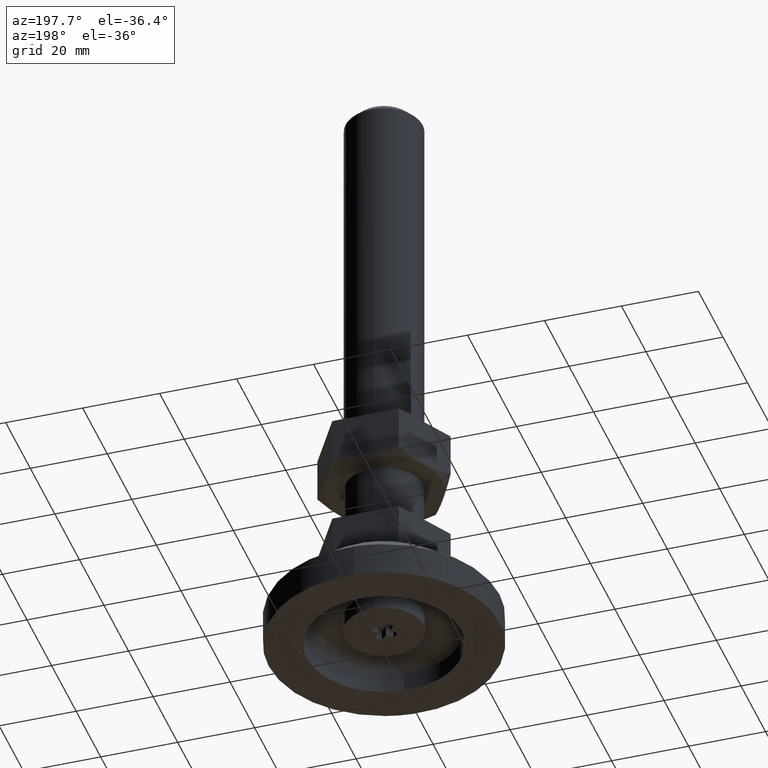
[diagram: clean part render]
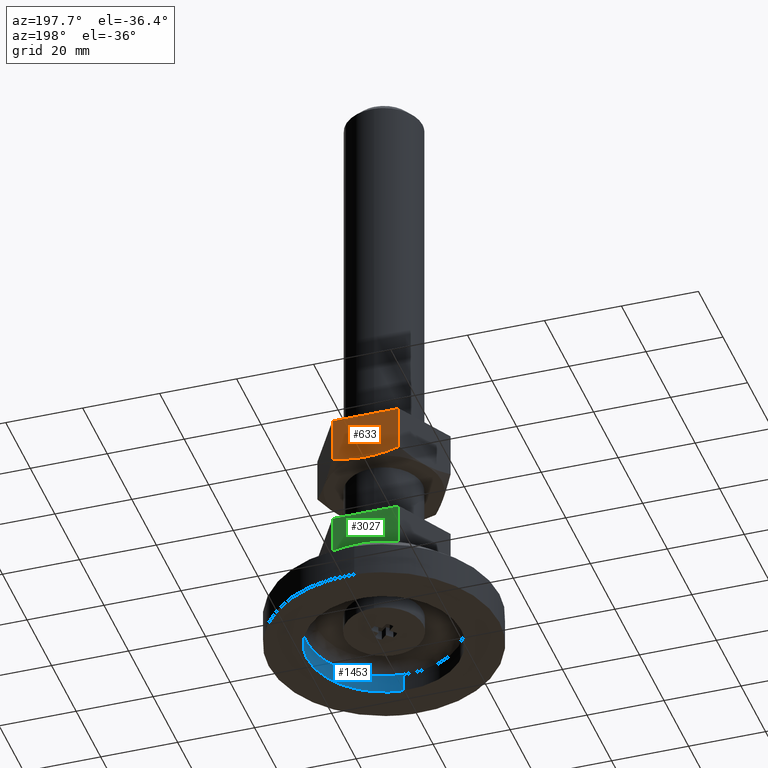
[diagram: same view with three faces highlighted in distinct colors, each labeled with its STEP entity id]
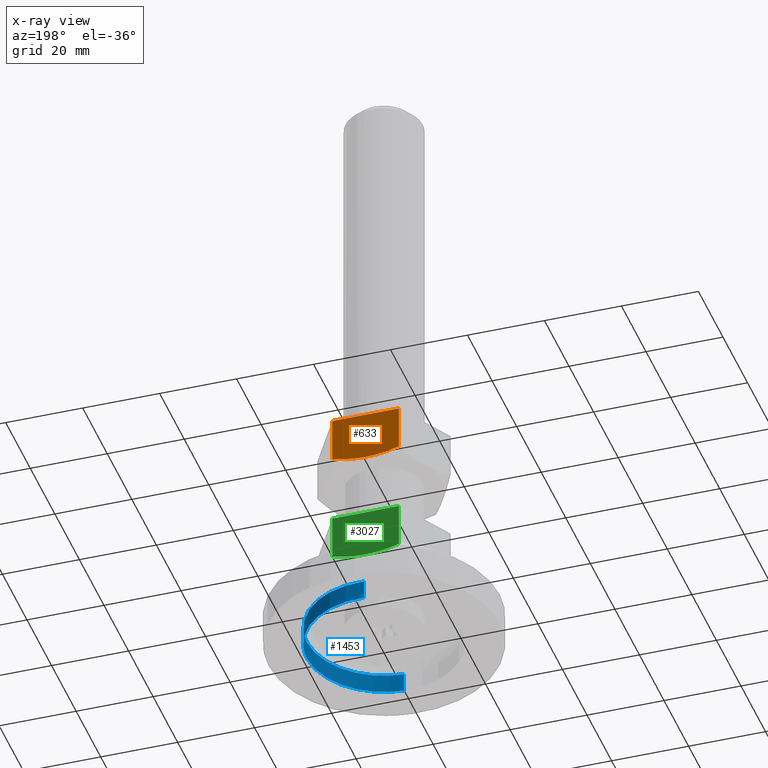
[diagram: x-ray of the same camera — body ghosted, the three highlighted faces saturated]
A machine part, auxiliary view with three faces highlighted in distinct colors.
The next image is the same camera in x-ray (body ghosted, the three faces saturated) — at least one of them is partly hidden behind the body in this view.
Their STEP definitions:

[orange] entity #633 — the highlighted face is a freeform B-spline surface patch.
#289=CARTESIAN_POINT('',(-8.639746000000001,15.0,48.345671394023597));
#290=VERTEX_POINT('',#289);
#302=CARTESIAN_POINT('',(8.639746000000001,15.0,48.345671394023597));
#303=VERTEX_POINT('',#302);
#304=CARTESIAN_POINT('',(8.639746000000001,15.0,48.345671394023597));
#305=CARTESIAN_POINT('',(7.243065403558348,15.000000000000011,47.943201150343683));
#306=CARTESIAN_POINT('',(5.828098707583275,15.0,47.608112828349647));
#307=CARTESIAN_POINT('',(4.025000240808056,15.0,47.315975503435432));
#308=CARTESIAN_POINT('',(3.481481264012238,15.0,47.237876046936201));
#309=CARTESIAN_POINT('',(2.933746094967382,15.0,47.175312715864877));
#310=CARTESIAN_POINT('',(2.567617441095456,15.0,47.137185060879297));
#311=CARTESIAN_POINT('',(2.383861673901584,15.0,47.119895832698177));
#312=CARTESIAN_POINT('',(1.465291907568254,15.0,47.042931423502601));
#313=CARTESIAN_POINT('',(0.732753118449166,15.0,47.011912443008043));
#314=CARTESIAN_POINT('',(-0.727630583971164,15.000000000000011,47.011768473679403));
#315=CARTESIAN_POINT('',(-1.455476411894558,15.0,47.042631424531457));
#316=CARTESIAN_POINT('',(-2.906706002747137,15.0,47.163194633454083));
#317=CARTESIAN_POINT('',(-3.630093047437014,15.0,47.252851617847007));
#318=CARTESIAN_POINT('',(-5.072865540092759,15.0,47.484931105763877));
#319=CARTESIAN_POINT('',(-5.792395982895502,15.0,47.627336067024572));
#320=CARTESIAN_POINT('',(-7.227461233591754,15.000000000000011,47.957191362850850));
#321=CARTESIAN_POINT('',(-7.936833729160911,15.0,48.143118803509260));
#322=CARTESIAN_POINT('',(-8.639746000000075,15.0,48.345671394023398));
#323=B_SPLINE_CURVE_WITH_KNOTS('',3,(#304,#305,#306,#307,#308,#309,#310,#311,#312,#313,#314,#315,#316,#317,#318,#319,#320,#321,#322),.UNSPECIFIED.,.F.,.U.,(4,2,1,2,2,2,2,2,2,4),(0.0,0.250000000000000,0.312500000000000,0.343750000000000,0.375000000000000,0.500000000000000,0.625000000000000,0.750000000000000,0.875000000000000,1.0),.UNSPECIFIED.);
#324=EDGE_CURVE('',#303,#290,#323,.T.);
#500=CARTESIAN_POINT('',(-8.639746000000001,15.0,60.0));
#501=VERTEX_POINT('',#500);
#528=CARTESIAN_POINT('',(8.639746000000001,15.0,60.0));
#529=VERTEX_POINT('',#528);
#535=CARTESIAN_POINT('',(-8.639746000000001,15.0,60.0));
#536=CARTESIAN_POINT('',(8.639746000000001,15.0,60.0));
#537=QUASI_UNIFORM_CURVE('',1,(#535,#536),.UNSPECIFIED.,.F.,.U.);
#538=EDGE_CURVE('',#501,#529,#537,.T.);
#609=CARTESIAN_POINT('',(8.639746000000001,15.0,60.0));
#610=CARTESIAN_POINT('',(8.639746000000001,15.0,48.345671394023597));
#611=QUASI_UNIFORM_CURVE('',1,(#609,#610),.UNSPECIFIED.,.F.,.U.);
#612=EDGE_CURVE('',#529,#303,#611,.T.);
#618=CARTESIAN_POINT('',(-9.502856591908993,15.0,46.363081782505873));
#619=CARTESIAN_POINT('',(-9.502856591908993,15.0,60.648758898576993));
#620=CARTESIAN_POINT('',(9.502857055381085,15.0,46.363081782505873));
#621=CARTESIAN_POINT('',(9.502857055381085,15.0,60.648758898576993));
#622=B_SPLINE_SURFACE_WITH_KNOTS('',1,1,((#618,#620),(#619,#621)),.UNSPECIFIED.,.F.,.F.,.U.,(2,2),(2,2),(0.0,14.285677116071110),(0.0,19.005713647290079),.UNSPECIFIED.);
#623=ORIENTED_EDGE('',*,*,#612,.T.);
#624=ORIENTED_EDGE('',*,*,#324,.T.);
#625=CARTESIAN_POINT('',(-8.639746000000001,15.0,60.0));
#626=CARTESIAN_POINT('',(-8.639746000000001,15.0,48.345671394023597));
#627=QUASI_UNIFORM_CURVE('',1,(#625,#626),.UNSPECIFIED.,.F.,.U.);
#628=EDGE_CURVE('',#501,#290,#627,.T.);
#629=ORIENTED_EDGE('',*,*,#628,.F.);
#630=ORIENTED_EDGE('',*,*,#538,.T.);
#631=EDGE_LOOP('',(#623,#624,#629,#630));
#632=FACE_OUTER_BOUND('',#631,.T.);
#633=ADVANCED_FACE('',(#632),#622,.T.);

[blue] entity #1453 — the highlighted face is a freeform B-spline surface patch.
#1151=CARTESIAN_POINT('',(-1.220954897837458,19.962696940473581,5.000000000871270));
#1152=VERTEX_POINT('',#1151);
#1166=CARTESIAN_POINT('',(20.0,8.851079E-016,5.000000000871270));
#1167=VERTEX_POINT('',#1166);
#1168=CARTESIAN_POINT('',(-1.220954897837459,19.962696940473577,5.000000000871270));
#1169=CARTESIAN_POINT('',(-0.611047297261024,19.999999999993761,5.000000000871270));
#1170=CARTESIAN_POINT('',(3.775416E-013,19.999999999993861,5.000000000871270));
#1171=CARTESIAN_POINT('',(20.000000000000181,19.999999999997026,5.000000000871270));
#1172=CARTESIAN_POINT('',(20.0,8.851079E-016,5.000000000871270));
#1180=(BOUNDED_CURVE()B_SPLINE_CURVE(2,(#1168,#1169,#1170,#1171,#1172),.UNSPECIFIED.,.F.,.U.)B_SPLINE_CURVE_WITH_KNOTS((3,2,3),(0.239333099611300,0.250000000000000,0.500000000000000),.UNSPECIFIED.)CURVE()GEOMETRIC_REPRESENTATION_ITEM()RATIONAL_B_SPLINE_CURVE((0.976072336082005,0.987502948841565,1.0,0.707106781186548,1.0))REPRESENTATION_ITEM(''));
#1181=EDGE_CURVE('',#1152,#1167,#1180,.T.);
#1232=CARTESIAN_POINT('',(1.220954897837459,-19.962696940473581,5.000000000871270));
#1233=VERTEX_POINT('',#1232);
#1234=CARTESIAN_POINT('',(20.0,8.851079E-016,5.000000000871270));
#1235=CARTESIAN_POINT('',(19.999999999999805,-18.814136344552999,5.000000000871271));
#1236=CARTESIAN_POINT('',(1.220954897837459,-19.962696940473577,5.000000000871270));
#1244=(BOUNDED_CURVE()B_SPLINE_CURVE(2,(#1234,#1235,#1236),.UNSPECIFIED.,.F.,.U.)B_SPLINE_CURVE_WITH_KNOTS((3,3),(0.500000000000000,0.739333099611300),.UNSPECIFIED.)CURVE()GEOMETRIC_REPRESENTATION_ITEM()RATIONAL_B_SPLINE_CURVE((1.0,0.719603832344983,0.976072336082005))REPRESENTATION_ITEM(''));
#1245=EDGE_CURVE('',#1167,#1233,#1244,.T.);
#1387=CARTESIAN_POINT('',(-1.220970790697141,19.962695968437330,5.125000000893053));
#1388=CARTESIAN_POINT('',(18.741725177740186,21.183666759134471,5.125000000893053));
#1389=CARTESIAN_POINT('',(19.962695968437330,1.220970790697141,5.125000000893053));
#1390=CARTESIAN_POINT('',(21.183666759134471,-18.741725177740186,5.125000000893053));
#1391=CARTESIAN_POINT('',(1.220970790697141,-19.962695968437330,5.125000000893053));
#1392=CARTESIAN_POINT('',(-1.220970790697141,19.962695968437330,-0.128125000022326));
#1393=CARTESIAN_POINT('',(18.741725177740186,21.183666759134471,-0.128125000022326));
#1394=CARTESIAN_POINT('',(19.962695968437330,1.220970790697141,-0.128125000022326));
#1395=CARTESIAN_POINT('',(21.183666759134471,-18.741725177740186,-0.128125000022326));
#1396=CARTESIAN_POINT('',(1.220970790697141,-19.962695968437330,-0.128125000022326));
#1404=(BOUNDED_SURFACE()B_SPLINE_SURFACE(2,1,((#1387,#1392),(#1388,#1393),(#1389,#1394),(#1390,#1395),(#1391,#1396)),.UNSPECIFIED.,.F.,.F.,.U.)B_SPLINE_SURFACE_WITH_KNOTS((3,2,3),(2,2),(0.0,33.137084989847587,66.274169979695188),(0.0,5.253125000915379),.UNSPECIFIED.)GEOMETRIC_REPRESENTATION_ITEM()RATIONAL_B_SPLINE_SURFACE(((1.0,1.0),(0.707106781186548,0.707106781186548),(1.0,1.0),(0.707106781186548,0.707106781186548),(1.0,1.0)))REPRESENTATION_ITEM('')SURFACE());
#1405=CARTESIAN_POINT('',(-1.220954699610934,19.962696952597309,5.464101E-013));
#1406=VERTEX_POINT('',#1405);
#1407=CARTESIAN_POINT('',(20.0,0.0,0.0));
#1408=VERTEX_POINT('',#1407);
#1409=CARTESIAN_POINT('',(-1.220954699610934,19.962696952597316,5.464101E-013));
#1410=CARTESIAN_POINT('',(-0.611047197869862,19.999999999993612,5.385580E-013));
#1411=CARTESIAN_POINT('',(3.830910E-013,19.999999999993712,5.302109E-013));
#1412=CARTESIAN_POINT('',(20.000000000000181,19.999999999996941,2.570059E-013));
#1413=CARTESIAN_POINT('',(20.0,0.0,0.0));
#1421=(BOUNDED_CURVE()B_SPLINE_CURVE(2,(#1409,#1410,#1411,#1412,#1413),.UNSPECIFIED.,.F.,.U.)B_SPLINE_CURVE_WITH_KNOTS((3,2,3),(0.239333101324664,0.250000000000000,0.500000000000000),.UNSPECIFIED.)CURVE()GEOMETRIC_REPRESENTATION_ITEM()RATIONAL_B_SPLINE_CURVE((0.976072339754074,0.987502950848895,1.0,0.707106781186548,1.0))REPRESENTATION_ITEM(''));
#1422=EDGE_CURVE('',#1406,#1408,#1421,.T.);
#1423=ORIENTED_EDGE('',*,*,#1422,.T.);
#1424=CARTESIAN_POINT('',(1.220954699610932,-19.962696952597309,5.464101E-013));
#1425=VERTEX_POINT('',#1424);
#1426=CARTESIAN_POINT('',(20.0,0.0,0.0));
#1427=CARTESIAN_POINT('',(19.999999999999801,-18.814136531723499,2.732051E-013));
#1428=CARTESIAN_POINT('',(1.220954699610932,-19.962696952597316,5.464101E-013));
#1436=(BOUNDED_CURVE()B_SPLINE_CURVE(2,(#1426,#1427,#1428),.UNSPECIFIED.,.F.,.U.)B_SPLINE_CURVE_WITH_KNOTS((3,3),(0.500000000000000,0.739333101324663),.UNSPECIFIED.)CURVE()GEOMETRIC_REPRESENTATION_ITEM()RATIONAL_B_SPLINE_CURVE((1.0,0.719603830337653,0.976072339754074))REPRESENTATION_ITEM(''));
#1437=EDGE_CURVE('',#1408,#1425,#1436,.T.);
#1438=ORIENTED_EDGE('',*,*,#1437,.T.);
#1439=CARTESIAN_POINT('',(1.220954897837459,-19.962696940473581,5.000000000871270));
#1440=CARTESIAN_POINT('',(1.220954699610932,-19.962696952597309,5.464101E-013));
#1441=QUASI_UNIFORM_CURVE('',1,(#1439,#1440),.UNSPECIFIED.,.F.,.U.);
#1442=EDGE_CURVE('',#1233,#1425,#1441,.T.);
#1443=ORIENTED_EDGE('',*,*,#1442,.F.);
#1444=ORIENTED_EDGE('',*,*,#1245,.F.);
#1445=ORIENTED_EDGE('',*,*,#1181,.F.);
#1446=CARTESIAN_POINT('',(-1.220954897837458,19.962696940473581,5.000000000871270));
#1447=CARTESIAN_POINT('',(-1.220954699610934,19.962696952597309,5.464101E-013));
#1448=QUASI_UNIFORM_CURVE('',1,(#1446,#1447),.UNSPECIFIED.,.F.,.U.);
#1449=EDGE_CURVE('',#1152,#1406,#1448,.T.);
#1450=ORIENTED_EDGE('',*,*,#1449,.T.);
#1451=EDGE_LOOP('',(#1423,#1438,#1443,#1444,#1445,#1450));
#1452=FACE_OUTER_BOUND('',#1451,.T.);
#1453=ADVANCED_FACE('',(#1452),#1404,.F.);

[green] entity #3027 — the highlighted face is a freeform B-spline surface patch.
#2772=CARTESIAN_POINT('',(-8.639746000000001,15.0,30.0));
#2773=VERTEX_POINT('',#2772);
#2800=CARTESIAN_POINT('',(8.639746000000001,15.0,30.0));
#2801=VERTEX_POINT('',#2800);
#2807=CARTESIAN_POINT('',(-8.639746000000001,15.0,30.0));
#2808=CARTESIAN_POINT('',(8.639746000000001,15.0,30.0));
#2809=QUASI_UNIFORM_CURVE('',1,(#2807,#2808),.UNSPECIFIED.,.F.,.U.);
#2810=EDGE_CURVE('',#2773,#2801,#2809,.T.);
#2957=CARTESIAN_POINT('',(8.639746000000001,15.0,18.345671394023402));
#2958=VERTEX_POINT('',#2957);
#2980=CARTESIAN_POINT('',(8.639746000000001,15.0,30.0));
#2981=CARTESIAN_POINT('',(8.639746000000001,15.0,18.345671394023402));
#2982=QUASI_UNIFORM_CURVE('',1,(#2980,#2981),.UNSPECIFIED.,.F.,.U.);
#2983=EDGE_CURVE('',#2801,#2958,#2982,.T.);
#2989=CARTESIAN_POINT('',(-9.502856591908994,15.0,16.363081782505670));
#2990=CARTESIAN_POINT('',(-9.502856591908994,15.0,30.648758898577000));
#2991=CARTESIAN_POINT('',(9.502857055381087,15.0,16.363081782505670));
#2992=CARTESIAN_POINT('',(9.502857055381087,15.0,30.648758898577000));
#2993=B_SPLINE_SURFACE_WITH_KNOTS('',1,1,((#2989,#2991),(#2990,#2992)),.UNSPECIFIED.,.F.,.F.,.U.,(2,2),(2,2),(0.0,14.285677116071319),(0.0,19.005713647290079),.UNSPECIFIED.);
#2994=ORIENTED_EDGE('',*,*,#2983,.T.);
#2995=CARTESIAN_POINT('',(-8.639746000000001,15.0,18.345671394023402));
#2996=VERTEX_POINT('',#2995);
#2997=CARTESIAN_POINT('',(8.639746000000001,15.0,18.345671394023402));
#2998=CARTESIAN_POINT('',(7.243065403558346,15.0,17.943201150343469));
#2999=CARTESIAN_POINT('',(5.828098707583267,15.0,17.608112828349459));
#3000=CARTESIAN_POINT('',(4.025000240808052,15.0,17.315975503435240));
#3001=CARTESIAN_POINT('',(3.481481264012244,15.0,17.237876046936019));
#3002=CARTESIAN_POINT('',(2.933746094967384,15.0,17.175312715864688));
#3003=CARTESIAN_POINT('',(2.567617441095458,15.0,17.137185060879109));
#3004=CARTESIAN_POINT('',(2.383861673901584,15.0,17.119895832697981));
#3005=CARTESIAN_POINT('',(1.465291907568254,15.000000000000011,17.042931423502399));
#3006=CARTESIAN_POINT('',(0.732753118449166,15.0,17.011912443007841));
#3007=CARTESIAN_POINT('',(-0.727630583971163,15.0,17.011768473679211));
#3008=CARTESIAN_POINT('',(-1.455476411894552,15.0,17.042631424531269));
#3009=CARTESIAN_POINT('',(-2.906706002747131,15.0,17.163194633453880));
#3010=CARTESIAN_POINT('',(-3.630093047437011,15.0,17.252851617846819));
#3011=CARTESIAN_POINT('',(-5.072865540092755,15.0,17.484931105763678));
#3012=CARTESIAN_POINT('',(-5.792395982895497,14.999999999999989,17.627336067024359));
#3013=CARTESIAN_POINT('',(-7.227461233591750,15.0,17.957191362850651));
#3014=CARTESIAN_POINT('',(-7.936833729160911,15.0,18.143118803509051));
#3015=CARTESIAN_POINT('',(-8.639746000000073,15.0,18.345671394023199));
#3016=B_SPLINE_CURVE_WITH_KNOTS('',3,(#2997,#2998,#2999,#3000,#3001,#3002,#3003,#3004,#3005,#3006,#3007,#3008,#3009,#3010,#3011,#3012,#3013,#3014,#3015),.UNSPECIFIED.,.F.,.U.,(4,2,1,2,2,2,2,2,2,4),(0.0,0.250000000000000,0.312500000000000,0.343750000000000,0.375000000000000,0.500000000000000,0.625000000000000,0.750000000000000,0.875000000000000,1.0),.UNSPECIFIED.);
#3017=EDGE_CURVE('',#2958,#2996,#3016,.T.);
#3018=ORIENTED_EDGE('',*,*,#3017,.T.);
#3019=CARTESIAN_POINT('',(-8.639746000000001,15.0,30.0));
#3020=CARTESIAN_POINT('',(-8.639746000000001,15.0,18.345671394023402));
#3021=QUASI_UNIFORM_CURVE('',1,(#3019,#3020),.UNSPECIFIED.,.F.,.U.);
#3022=EDGE_CURVE('',#2773,#2996,#3021,.T.);
#3023=ORIENTED_EDGE('',*,*,#3022,.F.);
#3024=ORIENTED_EDGE('',*,*,#2810,.T.);
#3025=EDGE_LOOP('',(#2994,#3018,#3023,#3024));
#3026=FACE_OUTER_BOUND('',#3025,.T.);
#3027=ADVANCED_FACE('',(#3026),#2993,.T.);